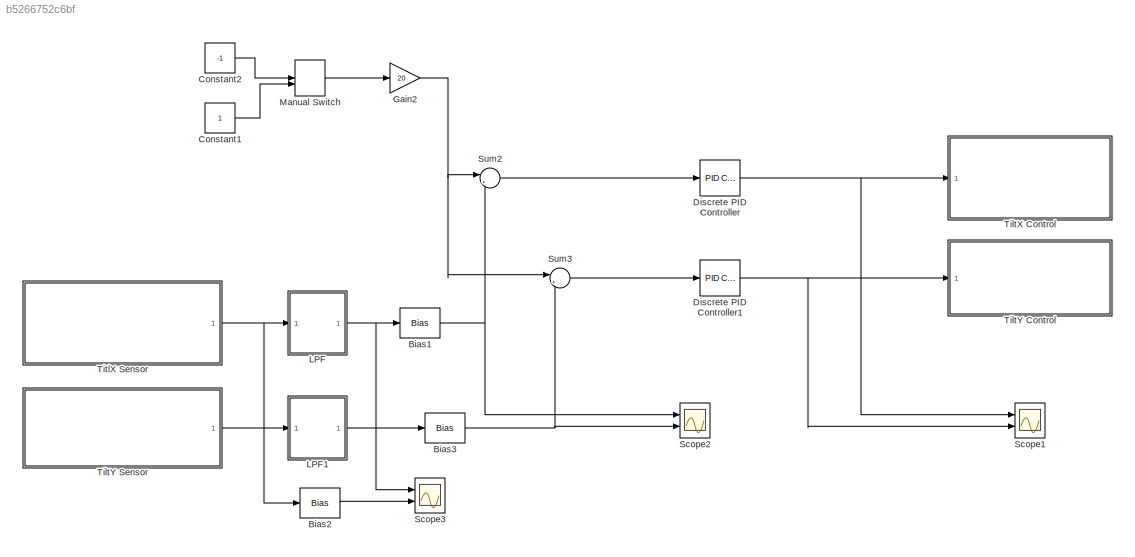
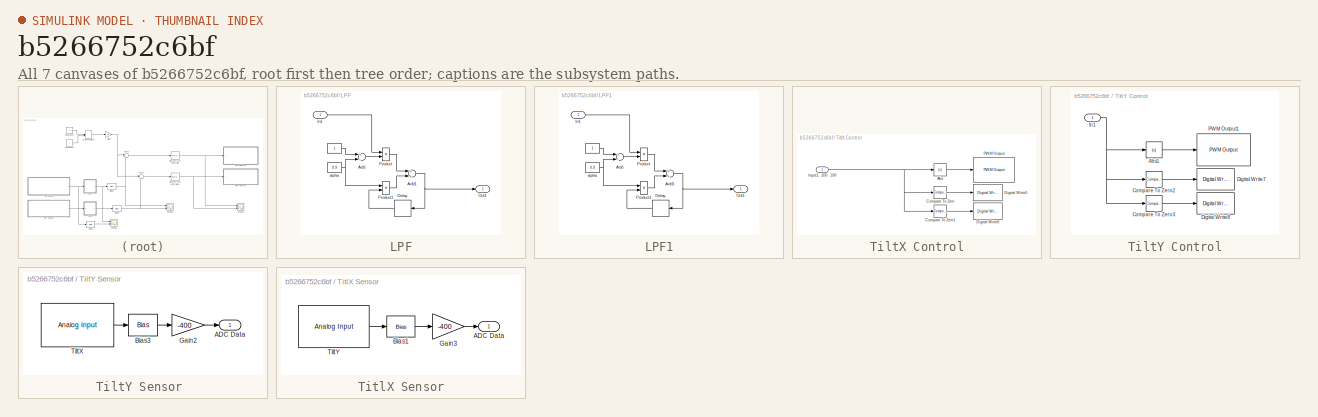
[diagram: thumbnail index - all 7 canvases of the model, root first then tree order]
MODEL slx_b5266752c6bf
KIND model
CONFIG AbsTol = auto
CONFIG EnableMultiTasking = on
CONFIG FixedStep = auto
CONFIG InitFcn = simin.time = [];\nsimin.signals.values = [10:5:90]';
CONFIG MaxStep = auto
CONFIG MinStep = auto
CONFIG RelTol = 1e-3
CONFIG SampleTimeConstraint = Unconstrained
CONFIG Solver = FixedStepAuto
CONFIG SolverName = FixedStepAuto
CONFIG StartTime = 0.0
CONFIG StopTime = 200
BLOCK [Bias] Bias1
  SaturateOnIntegerOverflow = off
BLOCK [Bias] Bias2
  Bias = 5
  SaturateOnIntegerOverflow = off
BLOCK [Bias] Bias3
  Bias = -25
  SaturateOnIntegerOverflow = off
BLOCK [Constant] Constant1
BLOCK [Constant] Constant2
  Value = -1
BLOCK [Reference] Discrete PID Controller  REF=simulink/Continuous/PID Controller
  Ports = [1, 1]
  SourceBlock = simulink/Continuous/PID Controller
  SourceProductBaseCode = SL
  SourceProductName = Simulink
  SourceType = PID 1dof
BLOCK [Reference] Discrete PID Controller1  REF=simulink/Continuous/PID Controller
  Ports = [1, 1]
  SourceBlock = simulink/Continuous/PID Controller
  SourceProductBaseCode = SL
  SourceProductName = Simulink
  SourceType = PID 1dof
BLOCK [Gain] Gain2
  Gain = 20
  OutDataTypeStr = Inherit: Inherit via internal rule
  ParamDataTypeStr = Inherit: Inherit via internal rule
  SaturateOnIntegerOverflow = off
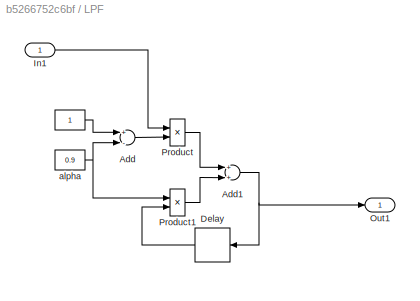
BLOCK [SubSystem] LPF
  Ports = [1, 1]
  RequestExecContextInheritance = off
BLOCK [Constant] LPF/ 
BLOCK [Sum] LPF/Add
  InputSameDT = off
  Inputs = +-
  OutDataTypeStr = Inherit: Inherit via internal rule
  Ports = [2, 1]
  SaturateOnIntegerOverflow = off
BLOCK [Sum] LPF/Add1
  InputSameDT = off
  OutDataTypeStr = Inherit: Inherit via internal rule
  Ports = [2, 1]
  SaturateOnIntegerOverflow = off
BLOCK [Delay] LPF/Delay
  DelayLength = 1
  InputPortMap = u0
  Ports = [1, 1]
BLOCK [Inport] LPF/In1
  IconDisplay = Port number
BLOCK [Outport] LPF/Out1
  IconDisplay = Port number
BLOCK [Product] LPF/Product
  InputSameDT = off
  OutDataTypeStr = Inherit: Inherit via internal rule
  Ports = [2, 1]
  RndMeth = Floor
  SaturateOnIntegerOverflow = off
BLOCK [Product] LPF/Product1
  InputSameDT = off
  OutDataTypeStr = Inherit: Inherit via internal rule
  Ports = [2, 1]
  RndMeth = Floor
  SaturateOnIntegerOverflow = off
BLOCK [Constant] LPF/alpha
  Value = 0.9
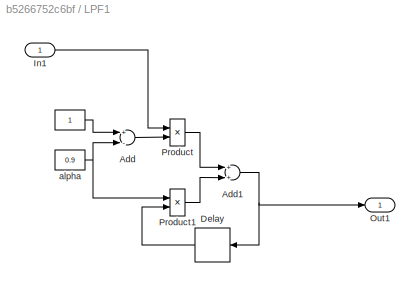
BLOCK [SubSystem] LPF1
  Ports = [1, 1]
  RequestExecContextInheritance = off
BLOCK [Constant] LPF1/ 
BLOCK [Sum] LPF1/Add
  InputSameDT = off
  Inputs = +-
  OutDataTypeStr = Inherit: Inherit via internal rule
  Ports = [2, 1]
  SaturateOnIntegerOverflow = off
BLOCK [Sum] LPF1/Add1
  InputSameDT = off
  OutDataTypeStr = Inherit: Inherit via internal rule
  Ports = [2, 1]
  SaturateOnIntegerOverflow = off
BLOCK [Delay] LPF1/Delay
  DelayLength = 1
  InputPortMap = u0
  Ports = [1, 1]
BLOCK [Inport] LPF1/In1
  IconDisplay = Port number
BLOCK [Outport] LPF1/Out1
  IconDisplay = Port number
BLOCK [Product] LPF1/Product
  InputSameDT = off
  OutDataTypeStr = Inherit: Inherit via internal rule
  Ports = [2, 1]
  RndMeth = Floor
  SaturateOnIntegerOverflow = off
BLOCK [Product] LPF1/Product1
  InputSameDT = off
  OutDataTypeStr = Inherit: Inherit via internal rule
  Ports = [2, 1]
  RndMeth = Floor
  SaturateOnIntegerOverflow = off
BLOCK [Constant] LPF1/alpha
  Value = 0.9
BLOCK [ManualSwitch] Manual Switch
  CurrentSetting = 0
BLOCK [Scope] Scope1
  Floating = off
  NumInputPorts = 2
  Ports = [2]
  ScopeSpecificationString = Simulink.scopes.TimeScopeBlockCfg('CurrentConfiguration', extmgr.ConfigurationSet(extmgr.Configuration('Core','General UI',true),extmgr.Configuration('Core','Source UI',true),extmgr.Configuration('Sources','WiredSimulink',true,'DataLoggingVariableName','ScopeData1'),extmgr.Configuration('Visuals','Time Domain',true,'SerializedDisplays',{struct('MinYLimReal','-9.53498','MaxYLimReal','8.26722','YLab...<+1579ch>
BLOCK [Scope] Scope2
  Floating = off
  NumInputPorts = 2
  Ports = [2]
  ScopeSpecificationString = Simulink.scopes.TimeScopeBlockCfg('CurrentConfiguration', extmgr.ConfigurationSet(extmgr.Configuration('Core','General UI',true),extmgr.Configuration('Core','Source UI',true),extmgr.Configuration('Sources','WiredSimulink',true),extmgr.Configuration('Visuals','Time Domain',true,'SerializedDisplays',{struct('MinYLimReal','-25.1077','MaxYLimReal','23.22274','YLabelReal','','MinYLimMag','0.00000','Max...<+1478ch>
BLOCK [Scope] Scope3
  Floating = off
  NumInputPorts = 2
  Ports = [2]
  ScopeSpecificationString = Simulink.scopes.TimeScopeBlockCfg('CurrentConfiguration', extmgr.ConfigurationSet(extmgr.Configuration('Core','General UI',true),extmgr.Configuration('Core','Source UI',true),extmgr.Configuration('Sources','WiredSimulink',true,'DataLoggingVariableName','ScopeData2'),extmgr.Configuration('Visuals','Time Domain',true,'SerializedDisplays',{struct('MinYLimReal','3.28159','MaxYLimReal','27.16894','YLab...<+1542ch>
BLOCK [Sum] Sum2
  IconShape = round
  InputSameDT = off
  Inputs = |+-
  OutDataTypeStr = Inherit: Inherit via internal rule
  Ports = [2, 1]
  SaturateOnIntegerOverflow = off
BLOCK [Sum] Sum3
  IconShape = round
  InputSameDT = off
  Inputs = |+-
  OutDataTypeStr = Inherit: Inherit via internal rule
  Ports = [2, 1]
  SaturateOnIntegerOverflow = off
BLOCK [SubSystem] TiltX Control
  Ports = [1]
  RequestExecContextInheritance = off
BLOCK [Abs] TiltX Control/Abs
  SaturateOnIntegerOverflow = off
BLOCK [Reference] TiltX Control/Compare To Zero  REF=simulink/Logic and Bit
Operations/Compare
To Zero
  Ports = [1, 1]
  SourceBlock = simulink/Logic and Bit\nOperations/Compare\nTo Zero
  SourceProductBaseCode = SL
  SourceProductName = Simulink
  SourceType = Compare To Zero
BLOCK [Reference] TiltX Control/Compare To Zero1  REF=simulink/Logic and Bit
Operations/Compare
To Zero
  Ports = [1, 1]
  SourceBlock = simulink/Logic and Bit\nOperations/Compare\nTo Zero
  SourceProductBaseCode = SL
  SourceProductName = Simulink
  SourceType = Compare To Zero
BLOCK [Reference] TiltX Control/Digital Write5  REF=mbedblockslib/Digital Write
  Ports = [1]
  SourceBlock = mbedblockslib/Digital Write
  SourceProductBaseCode = MICROBIT
  SourceProductName = Simulink Coder Support Package for BBC microbit Board
  SourceType = mbed.DigitalWrite
BLOCK [Reference] TiltX Control/Digital Write6  REF=mbedblockslib/Digital Write
  Ports = [1]
  SourceBlock = mbedblockslib/Digital Write
  SourceProductBaseCode = MICROBIT
  SourceProductName = Simulink Coder Support Package for BBC microbit Board
  SourceType = mbed.DigitalWrite
BLOCK [Inport] TiltX Control/Input1: -100 - 100
  IconDisplay = Port number
BLOCK [Reference] TiltX Control/PWM Output  REF=mbedblockslib/PWM Output
  Ports = [1]
  SourceBlock = mbedblockslib/PWM Output
  SourceProductBaseCode = MICROBIT
  SourceProductName = Simulink Coder Support Package for BBC microbit Board
  SourceType = mbed.PWMOutput
BLOCK [SubSystem] TiltY Control
  Ports = [1]
  RequestExecContextInheritance = off
BLOCK [Abs] TiltY Control/Abs1
  SaturateOnIntegerOverflow = off
BLOCK [Reference] TiltY Control/Compare To Zero2  REF=simulink/Logic and Bit
Operations/Compare
To Zero
  Ports = [1, 1]
  SourceBlock = simulink/Logic and Bit\nOperations/Compare\nTo Zero
  SourceProductBaseCode = SL
  SourceProductName = Simulink
  SourceType = Compare To Zero
BLOCK [Reference] TiltY Control/Compare To Zero3  REF=simulink/Logic and Bit
Operations/Compare
To Zero
  Ports = [1, 1]
  SourceBlock = simulink/Logic and Bit\nOperations/Compare\nTo Zero
  SourceProductBaseCode = SL
  SourceProductName = Simulink
  SourceType = Compare To Zero
BLOCK [Reference] TiltY Control/Digital Write7  REF=mbedblockslib/Digital Write
  Ports = [1]
  SourceBlock = mbedblockslib/Digital Write
  SourceProductBaseCode = MICROBIT
  SourceProductName = Simulink Coder Support Package for BBC microbit Board
  SourceType = mbed.DigitalWrite
BLOCK [Reference] TiltY Control/Digital Write8  REF=mbedblockslib/Digital Write
  Ports = [1]
  SourceBlock = mbedblockslib/Digital Write
  SourceProductBaseCode = MICROBIT
  SourceProductName = Simulink Coder Support Package for BBC microbit Board
  SourceType = mbed.DigitalWrite
BLOCK [Inport] TiltY Control/In1
  IconDisplay = Port number
BLOCK [Reference] TiltY Control/PWM Output1  REF=mbedblockslib/PWM Output
  Ports = [1]
  SourceBlock = mbedblockslib/PWM Output
  SourceProductBaseCode = MICROBIT
  SourceProductName = Simulink Coder Support Package for BBC microbit Board
  SourceType = mbed.PWMOutput
BLOCK [SubSystem] TiltY Sensor 
  Ports = [0, 1]
  RequestExecContextInheritance = off
BLOCK [Outport] TiltY Sensor /ADC Data
  IconDisplay = Port number
BLOCK [Bias] TiltY Sensor /Bias3
  Bias = -0.5
  SaturateOnIntegerOverflow = off
BLOCK [Gain] TiltY Sensor /Gain2
  Gain = -400
  OutDataTypeStr = Inherit: Inherit via internal rule
  ParamDataTypeStr = Inherit: Inherit via internal rule
  SaturateOnIntegerOverflow = off
BLOCK [Reference] TiltY Sensor /TiltX  REF=mbedblockslib/Analog Input
  Ports = [0, 1]
  SourceBlock = mbedblockslib/Analog Input
  SourceProductBaseCode = MICROBIT
  SourceProductName = Simulink Coder Support Package for BBC microbit Board
  SourceType = mbed.AnalogInput
BLOCK [SubSystem] TitlX Sensor
  Ports = [0, 1]
  RequestExecContextInheritance = off
BLOCK [Outport] TitlX Sensor/ADC Data
  IconDisplay = Port number
BLOCK [Bias] TitlX Sensor/Bias1
  Bias = -0.5
  SaturateOnIntegerOverflow = off
BLOCK [Gain] TitlX Sensor/Gain3
  Gain = -400
  OutDataTypeStr = Inherit: Inherit via internal rule
  ParamDataTypeStr = Inherit: Inherit via internal rule
  SaturateOnIntegerOverflow = off
BLOCK [Reference] TitlX Sensor/TiltY  REF=mbedblockslib/Analog Input
  Ports = [0, 1]
  SourceBlock = mbedblockslib/Analog Input
  SourceProductBaseCode = MICROBIT
  SourceProductName = Simulink Coder Support Package for BBC microbit Board
  SourceType = mbed.AnalogInput
NET Bias1:1 -> Scope2:1, Sum2:2
LINE Bias2:1 -> Scope3:2
NET Bias3:1 -> Scope2:2, Sum3:2
LINE Constant1:1 -> Manual Switch:2
LINE Constant2:1 -> Manual Switch:1
NET Discrete PID Controller1:1 -> Scope1:2, TiltY Control:1
NET Discrete PID Controller:1 -> Scope1:1, TiltX Control:1
NET Gain2:1 -> Sum2:1, Sum3:1
LINE LPF/ :1 -> LPF/Add:1
NET LPF/Add1:1 -> LPF/Delay:1, LPF/Out1:1
LINE LPF/Add:1 -> LPF/Product:2
LINE LPF/Delay:1 -> LPF/Product1:2
LINE LPF/In1:1 -> LPF/Product:1
LINE LPF/Product1:1 -> LPF/Add1:2
LINE LPF/Product:1 -> LPF/Add1:1
NET LPF/alpha:1 -> LPF/Add:2, LPF/Product1:1
LINE LPF1/ :1 -> LPF1/Add:1
NET LPF1/Add1:1 -> LPF1/Delay:1, LPF1/Out1:1
LINE LPF1/Add:1 -> LPF1/Product:2
LINE LPF1/Delay:1 -> LPF1/Product1:2
LINE LPF1/In1:1 -> LPF1/Product:1
LINE LPF1/Product1:1 -> LPF1/Add1:2
LINE LPF1/Product:1 -> LPF1/Add1:1
NET LPF1/alpha:1 -> LPF1/Add:2, LPF1/Product1:1
LINE LPF1:1 -> Bias3:1
NET LPF:1 -> Bias1:1, Scope3:1
LINE Manual Switch:1 -> Gain2:1
LINE Sum2:1 -> Discrete PID Controller:1
LINE Sum3:1 -> Discrete PID Controller1:1
LINE TiltX Control/Abs:1 -> TiltX Control/PWM Output:1
LINE TiltX Control/Compare To Zero1:1 -> TiltX Control/Digital Write6:1
LINE TiltX Control/Compare To Zero:1 -> TiltX Control/Digital Write5:1
NET TiltX Control/Input1: -100 - 100:1 -> TiltX Control/Abs:1, TiltX Control/Compare To Zero1:1, TiltX Control/Compare To Zero:1
LINE TiltY Control/Abs1:1 -> TiltY Control/PWM Output1:1
LINE TiltY Control/Compare To Zero2:1 -> TiltY Control/Digital Write7:1
LINE TiltY Control/Compare To Zero3:1 -> TiltY Control/Digital Write8:1
NET TiltY Control/In1:1 -> TiltY Control/Abs1:1, TiltY Control/Compare To Zero2:1, TiltY Control/Compare To Zero3:1
LINE TiltY Sensor /Bias3:1 -> TiltY Sensor /Gain2:1
LINE TiltY Sensor /Gain2:1 -> TiltY Sensor /ADC Data:1
LINE TiltY Sensor /TiltX:1 -> TiltY Sensor /Bias3:1
LINE TiltY Sensor :1 -> LPF1:1
LINE TitlX Sensor/Bias1:1 -> TitlX Sensor/Gain3:1
LINE TitlX Sensor/Gain3:1 -> TitlX Sensor/ADC Data:1
LINE TitlX Sensor/TiltY:1 -> TitlX Sensor/Bias1:1
NET TitlX Sensor:1 -> Bias2:1, LPF:1
note: NET lines group one-source signal fan-out (src -> all destinations, sorted); 1:1 wires keep LINE
